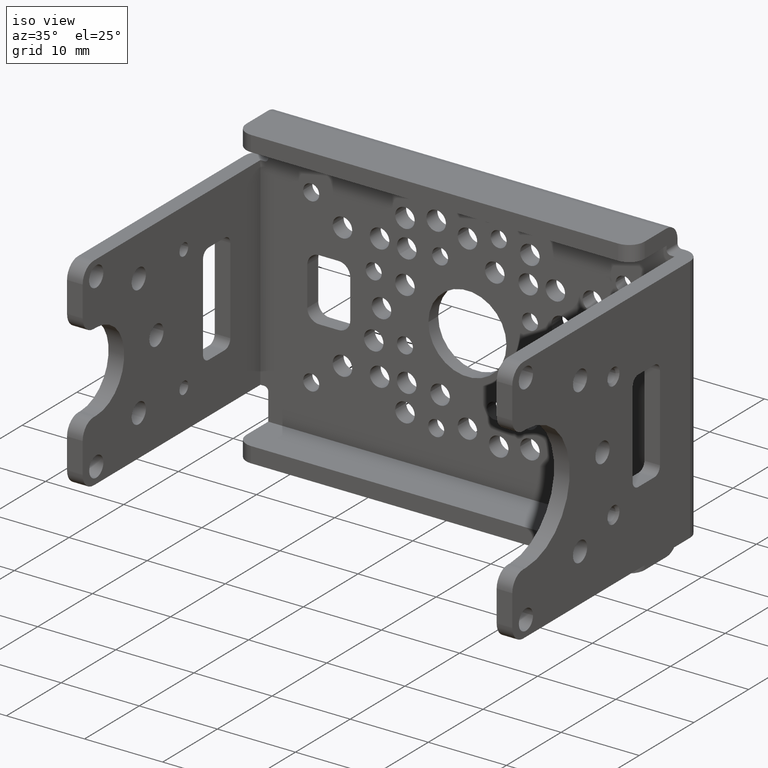
[diagram: clean part render]
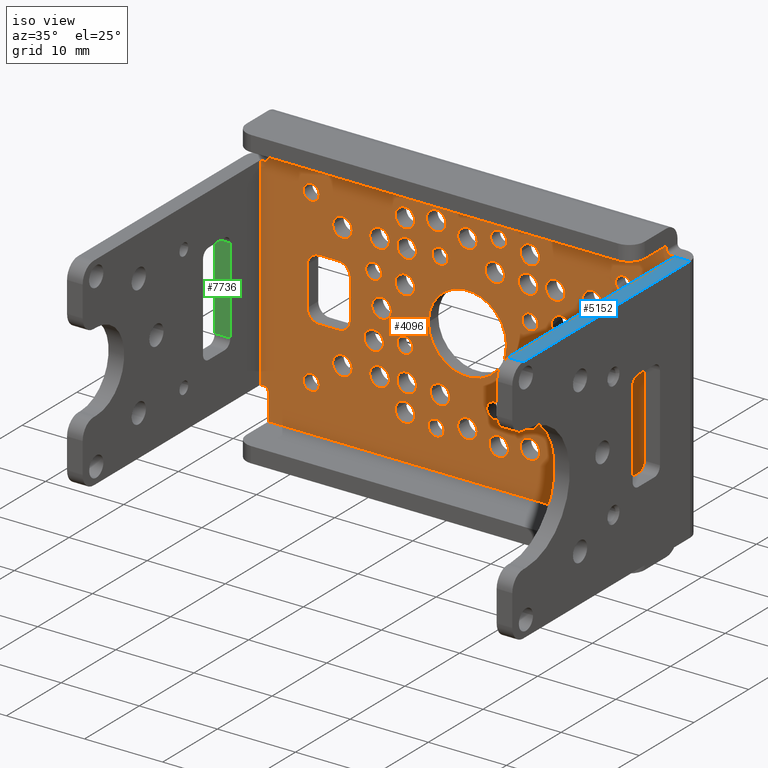
[diagram: same view with three faces highlighted in distinct colors, each labeled with its STEP entity id]
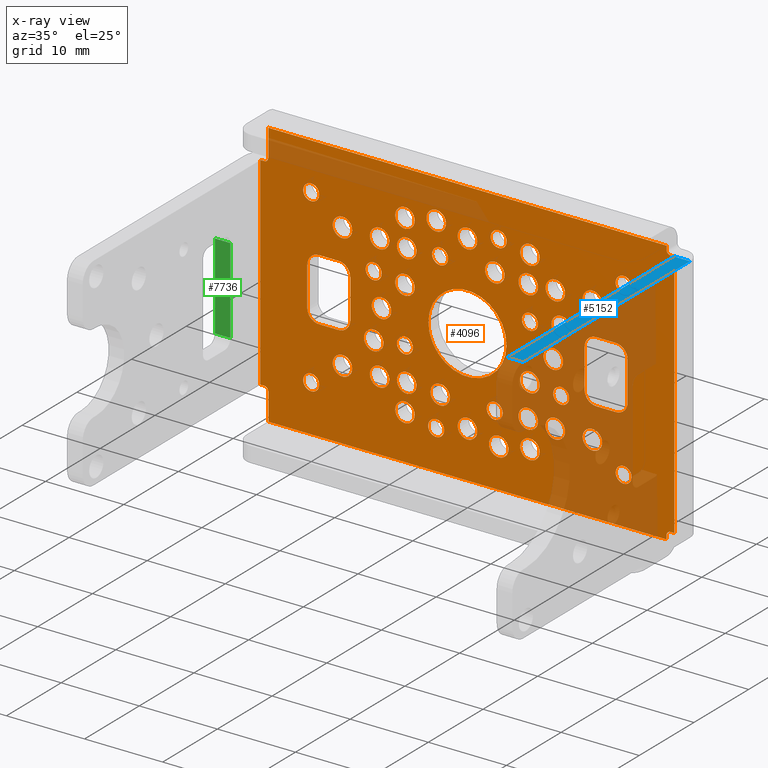
[diagram: x-ray of the same camera — body ghosted, the three highlighted faces saturated]
A machine part, iso view with three faces highlighted in distinct colors.
The next image is the same camera in x-ray (body ghosted, the three faces saturated) — at least one of them is partly hidden behind the body in this view.
Their STEP definitions:

[orange] entity #4096 — the highlighted planar face has unit normal (0, -1, 0).
#1=DIRECTION('',(1.E0,0.E0,0.E0));
#2=VECTOR('',#1,5.E-1);
#3=CARTESIAN_POINT('',(-2.65E1,0.E0,1.3E1));
#4=LINE('',#3,#2);
#5=DIRECTION('',(0.E0,0.E0,-1.E0));
#6=VECTOR('',#5,3.5E0);
#7=CARTESIAN_POINT('',(-2.55E1,0.E0,1.7E1));
#8=LINE('',#7,#6);
#9=DIRECTION('',(-1.E0,0.E0,0.E0));
#10=VECTOR('',#9,5.1E1);
#11=CARTESIAN_POINT('',(2.55E1,0.E0,1.7E1));
#12=LINE('',#11,#10);
#13=DIRECTION('',(0.E0,0.E0,-1.E0));
#14=VECTOR('',#13,5.E-1);
#15=CARTESIAN_POINT('',(2.55E1,0.E0,1.7E1));
#16=LINE('',#15,#14);
#17=DIRECTION('',(-1.E0,0.E0,0.E0));
#18=VECTOR('',#17,5.E-1);
#19=CARTESIAN_POINT('',(2.65E1,0.E0,1.6E1));
#20=LINE('',#19,#18);
#21=DIRECTION('',(-1.E0,0.E0,0.E0));
#22=VECTOR('',#21,5.E-1);
#23=CARTESIAN_POINT('',(2.65E1,0.E0,-1.6E1));
#24=LINE('',#23,#22);
#25=DIRECTION('',(0.E0,0.E0,1.E0));
#26=VECTOR('',#25,5.E-1);
#27=CARTESIAN_POINT('',(2.55E1,0.E0,-1.7E1));
#28=LINE('',#27,#26);
#29=DIRECTION('',(1.E0,0.E0,0.E0));
#30=VECTOR('',#29,5.1E1);
#31=CARTESIAN_POINT('',(-2.55E1,0.E0,-1.7E1));
#32=LINE('',#31,#30);
#33=DIRECTION('',(0.E0,0.E0,1.E0));
#34=VECTOR('',#33,3.5E0);
#35=CARTESIAN_POINT('',(-2.55E1,0.E0,-1.7E1));
#36=LINE('',#35,#34);
#37=DIRECTION('',(1.E0,0.E0,0.E0));
#38=VECTOR('',#37,5.E-1);
#39=CARTESIAN_POINT('',(-2.65E1,0.E0,-1.3E1));
#40=LINE('',#39,#38);
#41=CARTESIAN_POINT('',(0.E0,0.E0,0.E0));
#42=DIRECTION('',(0.E0,1.E0,0.E0));
#43=DIRECTION('',(-1.E0,0.E0,0.E0));
#44=AXIS2_PLACEMENT_3D('',#41,#42,#43);
#46=CARTESIAN_POINT('',(0.E0,0.E0,0.E0));
#47=DIRECTION('',(0.E0,1.E0,0.E0));
#48=DIRECTION('',(1.E0,0.E0,0.E0));
#49=AXIS2_PLACEMENT_3D('',#46,#47,#48);
#51=DIRECTION('',(-1.E0,0.E0,0.E0));
#52=VECTOR('',#51,2.5E0);
#53=CARTESIAN_POINT('',(-1.65E1,0.E0,-4.E0));
#54=LINE('',#53,#52);
#55=DIRECTION('',(0.E0,0.E0,-1.E0));
#56=VECTOR('',#55,5.E0);
#57=CARTESIAN_POINT('',(-1.5E1,0.E0,2.5E0));
#58=LINE('',#57,#56);
#59=DIRECTION('',(1.E0,0.E0,0.E0));
#60=VECTOR('',#59,2.5E0);
#61=CARTESIAN_POINT('',(-1.9E1,0.E0,4.E0));
#62=LINE('',#61,#60);
#63=DIRECTION('',(0.E0,0.E0,1.E0));
#64=VECTOR('',#63,5.E0);
#65=CARTESIAN_POINT('',(-2.05E1,0.E0,-2.5E0));
#66=LINE('',#65,#64);
#67=DIRECTION('',(1.E0,0.E0,0.E0));
#68=VECTOR('',#67,2.5E0);
#69=CARTESIAN_POINT('',(1.65E1,0.E0,-4.E0));
#70=LINE('',#69,#68);
#71=DIRECTION('',(0.E0,0.E0,1.E0));
#72=VECTOR('',#71,5.E0);
#73=CARTESIAN_POINT('',(2.05E1,0.E0,-2.5E0));
#74=LINE('',#73,#72);
#75=DIRECTION('',(-1.E0,0.E0,0.E0));
#76=VECTOR('',#75,2.5E0);
#77=CARTESIAN_POINT('',(1.9E1,0.E0,4.E0));
#78=LINE('',#77,#76);
#79=DIRECTION('',(0.E0,0.E0,-1.E0));
#80=VECTOR('',#79,5.E0);
#81=CARTESIAN_POINT('',(1.5E1,0.E0,2.5E0));
#82=LINE('',#81,#80);
#83=CARTESIAN_POINT('',(0.E0,0.E0,-1.1E1));
#84=DIRECTION('',(0.E0,-1.E0,0.E0));
#85=DIRECTION('',(1.E0,0.E0,0.E0));
#86=AXIS2_PLACEMENT_3D('',#83,#84,#85);
#88=CARTESIAN_POINT('',(0.E0,0.E0,-1.1E1));
#89=DIRECTION('',(0.E0,-1.E0,0.E0));
#90=DIRECTION('',(-1.E0,0.E0,0.E0));
#91=AXIS2_PLACEMENT_3D('',#88,#89,#90);
#93=CARTESIAN_POINT('',(7.778174593052E0,0.E0,-7.778174593052E0));
#94=DIRECTION('',(0.E0,-1.E0,0.E0));
#95=DIRECTION('',(7.071067811865E-1,0.E0,7.071067811865E-1));
#96=AXIS2_PLACEMENT_3D('',#93,#94,#95);
#98=CARTESIAN_POINT('',(7.778174593052E0,0.E0,-7.778174593052E0));
#99=DIRECTION('',(0.E0,-1.E0,0.E0));
#100=DIRECTION('',(-7.071067811865E-1,0.E0,-7.071067811865E-1));
#101=AXIS2_PLACEMENT_3D('',#98,#99,#100);
#103=CARTESIAN_POINT('',(1.1E1,0.E0,0.E0));
#104=DIRECTION('',(0.E0,-1.E0,0.E0));
#105=DIRECTION('',(0.E0,0.E0,1.E0));
#106=AXIS2_PLACEMENT_3D('',#103,#104,#105);
#108=CARTESIAN_POINT('',(1.1E1,0.E0,0.E0));
#109=DIRECTION('',(0.E0,-1.E0,0.E0));
#110=DIRECTION('',(0.E0,0.E0,-1.E0));
#111=AXIS2_PLACEMENT_3D('',#108,#109,#110);
#113=CARTESIAN_POINT('',(7.778174593052E0,0.E0,7.778174593052E0));
#114=DIRECTION('',(0.E0,-1.E0,0.E0));
#115=DIRECTION('',(-7.071067811865E-1,0.E0,7.071067811865E-1));
#116=AXIS2_PLACEMENT_3D('',#113,#114,#115);
#118=CARTESIAN_POINT('',(7.778174593052E0,0.E0,7.778174593052E0));
#119=DIRECTION('',(0.E0,-1.E0,0.E0));
#120=DIRECTION('',(7.071067811865E-1,0.E0,-7.071067811865E-1));
#121=AXIS2_PLACEMENT_3D('',#118,#119,#120);
#123=CARTESIAN_POINT('',(0.E0,0.E0,1.1E1));
#124=DIRECTION('',(0.E0,-1.E0,0.E0));
#125=DIRECTION('',(-1.E0,0.E0,0.E0));
#126=AXIS2_PLACEMENT_3D('',#123,#124,#125);
#128=CARTESIAN_POINT('',(0.E0,0.E0,1.1E1));
#129=DIRECTION('',(0.E0,-1.E0,0.E0));
#130=DIRECTION('',(1.E0,0.E0,0.E0));
#131=AXIS2_PLACEMENT_3D('',#128,#129,#130);
#133=CARTESIAN_POINT('',(-7.778174593052E0,0.E0,7.778174593052E0));
#134=DIRECTION('',(0.E0,-1.E0,0.E0));
#135=DIRECTION('',(-7.071067811865E-1,0.E0,-7.071067811865E-1));
#136=AXIS2_PLACEMENT_3D('',#133,#134,#135);
#138=CARTESIAN_POINT('',(-7.778174593052E0,0.E0,7.778174593052E0));
#139=DIRECTION('',(0.E0,-1.E0,0.E0));
#140=DIRECTION('',(7.071067811865E-1,0.E0,7.071067811865E-1));
#141=AXIS2_PLACEMENT_3D('',#138,#139,#140);
#143=CARTESIAN_POINT('',(-1.1E1,0.E0,0.E0));
#144=DIRECTION('',(0.E0,-1.E0,0.E0));
#145=DIRECTION('',(0.E0,0.E0,-1.E0));
#146=AXIS2_PLACEMENT_3D('',#143,#144,#145);
#148=CARTESIAN_POINT('',(-1.1E1,0.E0,0.E0));
#149=DIRECTION('',(0.E0,-1.E0,0.E0));
#150=DIRECTION('',(0.E0,0.E0,1.E0));
#151=AXIS2_PLACEMENT_3D('',#148,#149,#150);
#153=CARTESIAN_POINT('',(-7.778174593052E0,0.E0,-7.778174593052E0));
#154=DIRECTION('',(0.E0,-1.E0,0.E0));
#155=DIRECTION('',(7.071067811865E-1,0.E0,-7.071067811865E-1));
#156=AXIS2_PLACEMENT_3D('',#153,#154,#155);
#158=CARTESIAN_POINT('',(-7.778174593052E0,0.E0,-7.778174593052E0));
#159=DIRECTION('',(0.E0,-1.E0,0.E0));
#160=DIRECTION('',(-7.071067811865E-1,0.E0,7.071067811865E-1));
#161=AXIS2_PLACEMENT_3D('',#158,#159,#160);
#163=CARTESIAN_POINT('',(3.5E0,0.E0,-8.E0));
#164=DIRECTION('',(0.E0,1.E0,0.E0));
#165=DIRECTION('',(1.E0,0.E0,0.E0));
#166=AXIS2_PLACEMENT_3D('',#163,#164,#165);
#168=CARTESIAN_POINT('',(3.5E0,0.E0,-8.E0));
#169=DIRECTION('',(0.E0,1.E0,0.E0));
#170=DIRECTION('',(-1.E0,0.E0,0.E0));
#171=AXIS2_PLACEMENT_3D('',#168,#169,#170);
#173=CARTESIAN_POINT('',(-3.5E0,0.E0,-8.E0));
#174=DIRECTION('',(0.E0,-1.E0,0.E0));
#175=DIRECTION('',(1.E0,0.E0,0.E0));
#176=AXIS2_PLACEMENT_3D('',#173,#174,#175);
#178=CARTESIAN_POINT('',(-3.5E0,0.E0,-8.E0));
#179=DIRECTION('',(0.E0,-1.E0,0.E0));
#180=DIRECTION('',(-1.E0,0.E0,0.E0));
#181=AXIS2_PLACEMENT_3D('',#178,#179,#180);
#183=CARTESIAN_POINT('',(8.E0,0.E0,3.5E0));
#184=DIRECTION('',(0.E0,1.E0,0.E0));
#185=DIRECTION('',(0.E0,0.E0,1.E0));
#186=AXIS2_PLACEMENT_3D('',#183,#184,#185);
#188=CARTESIAN_POINT('',(8.E0,0.E0,3.5E0));
#189=DIRECTION('',(0.E0,1.E0,0.E0));
#190=DIRECTION('',(0.E0,0.E0,-1.E0));
#191=AXIS2_PLACEMENT_3D('',#188,#189,#190);
#193=CARTESIAN_POINT('',(8.E0,0.E0,-3.5E0));
#194=DIRECTION('',(0.E0,-1.E0,0.E0));
#195=DIRECTION('',(0.E0,0.E0,1.E0));
#196=AXIS2_PLACEMENT_3D('',#193,#194,#195);
#198=CARTESIAN_POINT('',(8.E0,0.E0,-3.5E0));
#199=DIRECTION('',(0.E0,-1.E0,0.E0));
#200=DIRECTION('',(0.E0,0.E0,-1.E0));
#201=AXIS2_PLACEMENT_3D('',#198,#199,#200);
#203=CARTESIAN_POINT('',(-3.5E0,0.E0,8.E0));
#204=DIRECTION('',(0.E0,1.E0,0.E0));
#205=DIRECTION('',(-1.E0,0.E0,0.E0));
#206=AXIS2_PLACEMENT_3D('',#203,#204,#205);
#208=CARTESIAN_POINT('',(-3.5E0,0.E0,8.E0));
#209=DIRECTION('',(0.E0,1.E0,0.E0));
#210=DIRECTION('',(1.E0,0.E0,0.E0));
#211=AXIS2_PLACEMENT_3D('',#208,#209,#210);
#213=CARTESIAN_POINT('',(3.5E0,0.E0,8.E0));
#214=DIRECTION('',(0.E0,-1.E0,0.E0));
#215=DIRECTION('',(-1.E0,0.E0,0.E0));
#216=AXIS2_PLACEMENT_3D('',#213,#214,#215);
#218=CARTESIAN_POINT('',(3.5E0,0.E0,8.E0));
#219=DIRECTION('',(0.E0,-1.E0,0.E0));
#220=DIRECTION('',(1.E0,0.E0,0.E0));
#221=AXIS2_PLACEMENT_3D('',#218,#219,#220);
#223=CARTESIAN_POINT('',(-8.E0,0.E0,-3.5E0));
#224=DIRECTION('',(0.E0,1.E0,0.E0));
#225=DIRECTION('',(0.E0,0.E0,-1.E0));
#226=AXIS2_PLACEMENT_3D('',#223,#224,#225);
#228=CARTESIAN_POINT('',(-8.E0,0.E0,-3.5E0));
#229=DIRECTION('',(0.E0,1.E0,0.E0));
#230=DIRECTION('',(0.E0,0.E0,1.E0));
#231=AXIS2_PLACEMENT_3D('',#228,#229,#230);
#233=CARTESIAN_POINT('',(-8.E0,0.E0,3.5E0));
#234=DIRECTION('',(0.E0,-1.E0,0.E0));
#235=DIRECTION('',(0.E0,0.E0,-1.E0));
#236=AXIS2_PLACEMENT_3D('',#233,#234,#235);
#238=CARTESIAN_POINT('',(-8.E0,0.E0,3.5E0));
#239=DIRECTION('',(0.E0,-1.E0,0.E0));
#240=DIRECTION('',(0.E0,0.E0,1.E0));
#241=AXIS2_PLACEMENT_3D('',#238,#239,#240);
#243=CARTESIAN_POINT('',(1.6E1,0.E0,-8.E0));
#244=DIRECTION('',(0.E0,-1.E0,0.E0));
#245=DIRECTION('',(1.E0,0.E0,0.E0));
#246=AXIS2_PLACEMENT_3D('',#243,#244,#245);
#248=CARTESIAN_POINT('',(1.6E1,0.E0,-8.E0));
#249=DIRECTION('',(0.E0,-1.E0,0.E0));
#250=DIRECTION('',(-1.E0,0.E0,0.E0));
#251=AXIS2_PLACEMENT_3D('',#248,#249,#250);
#253=CARTESIAN_POINT('',(1.6E1,0.E0,8.E0));
#254=DIRECTION('',(0.E0,1.E0,0.E0));
#255=DIRECTION('',(1.E0,0.E0,0.E0));
#256=AXIS2_PLACEMENT_3D('',#253,#254,#255);
#258=CARTESIAN_POINT('',(1.6E1,0.E0,8.E0));
#259=DIRECTION('',(0.E0,1.E0,0.E0));
#260=DIRECTION('',(-1.E0,0.E0,0.E0));
#261=AXIS2_PLACEMENT_3D('',#258,#259,#260);
#263=CARTESIAN_POINT('',(-1.6E1,0.E0,-8.E0));
#264=DIRECTION('',(0.E0,1.E0,0.E0));
#265=DIRECTION('',(-1.E0,0.E0,0.E0));
#266=AXIS2_PLACEMENT_3D('',#263,#264,#265);
#268=CARTESIAN_POINT('',(-1.6E1,0.E0,-8.E0));
#269=DIRECTION('',(0.E0,1.E0,0.E0));
#270=DIRECTION('',(1.E0,0.E0,0.E0));
#271=AXIS2_PLACEMENT_3D('',#268,#269,#270);
#273=CARTESIAN_POINT('',(-1.6E1,0.E0,8.E0));
#274=DIRECTION('',(0.E0,-1.E0,0.E0));
#275=DIRECTION('',(-1.E0,0.E0,0.E0));
#276=AXIS2_PLACEMENT_3D('',#273,#274,#275);
#278=CARTESIAN_POINT('',(-1.6E1,0.E0,8.E0));
#279=DIRECTION('',(0.E0,-1.E0,0.E0));
#280=DIRECTION('',(1.E0,0.E0,0.E0));
#281=AXIS2_PLACEMENT_3D('',#278,#279,#280);
#283=CARTESIAN_POINT('',(8.E0,0.E0,-1.125E1));
#284=DIRECTION('',(0.E0,-1.E0,0.E0));
#285=DIRECTION('',(1.E0,0.E0,0.E0));
#286=AXIS2_PLACEMENT_3D('',#283,#284,#285);
#288=CARTESIAN_POINT('',(8.E0,0.E0,-1.125E1));
#289=DIRECTION('',(0.E0,-1.E0,0.E0));
#290=DIRECTION('',(-1.E0,0.E0,0.E0));
#291=AXIS2_PLACEMENT_3D('',#288,#289,#290);
#293=CARTESIAN_POINT('',(-8.E0,0.E0,-1.125E1));
#294=DIRECTION('',(0.E0,1.E0,0.E0));
#295=DIRECTION('',(-1.E0,0.E0,0.E0));
#296=AXIS2_PLACEMENT_3D('',#293,#294,#295);
#298=CARTESIAN_POINT('',(-8.E0,0.E0,-1.125E1));
#299=DIRECTION('',(0.E0,1.E0,0.E0));
#300=DIRECTION('',(1.E0,0.E0,0.E0));
#301=AXIS2_PLACEMENT_3D('',#298,#299,#300);
#303=CARTESIAN_POINT('',(1.125E1,0.E0,8.E0));
#304=DIRECTION('',(0.E0,-1.E0,0.E0));
#305=DIRECTION('',(0.E0,0.E0,1.E0));
#306=AXIS2_PLACEMENT_3D('',#303,#304,#305);
#308=CARTESIAN_POINT('',(1.125E1,0.E0,8.E0));
#309=DIRECTION('',(0.E0,-1.E0,0.E0));
#310=DIRECTION('',(0.E0,0.E0,-1.E0));
#311=AXIS2_PLACEMENT_3D('',#308,#309,#310);
#313=CARTESIAN_POINT('',(1.125E1,0.E0,-8.E0));
#314=DIRECTION('',(0.E0,1.E0,0.E0));
#315=DIRECTION('',(0.E0,0.E0,-1.E0));
#316=AXIS2_PLACEMENT_3D('',#313,#314,#315);
#318=CARTESIAN_POINT('',(1.125E1,0.E0,-8.E0));
#319=DIRECTION('',(0.E0,1.E0,0.E0));
#320=DIRECTION('',(0.E0,0.E0,1.E0));
#321=AXIS2_PLACEMENT_3D('',#318,#319,#320);
#323=CARTESIAN_POINT('',(-8.E0,0.E0,1.125E1));
#324=DIRECTION('',(0.E0,-1.E0,0.E0));
#325=DIRECTION('',(-1.E0,0.E0,0.E0));
#326=AXIS2_PLACEMENT_3D('',#323,#324,#325);
#328=CARTESIAN_POINT('',(-8.E0,0.E0,1.125E1));
#329=DIRECTION('',(0.E0,-1.E0,0.E0));
#330=DIRECTION('',(1.E0,0.E0,0.E0));
#331=AXIS2_PLACEMENT_3D('',#328,#329,#330);
#333=CARTESIAN_POINT('',(8.E0,0.E0,1.125E1));
#334=DIRECTION('',(0.E0,1.E0,0.E0));
#335=DIRECTION('',(1.E0,0.E0,0.E0));
#336=AXIS2_PLACEMENT_3D('',#333,#334,#335);
#338=CARTESIAN_POINT('',(8.E0,0.E0,1.125E1));
#339=DIRECTION('',(0.E0,1.E0,0.E0));
#340=DIRECTION('',(-1.E0,0.E0,0.E0));
#341=AXIS2_PLACEMENT_3D('',#338,#339,#340);
#343=CARTESIAN_POINT('',(-1.125E1,0.E0,-8.E0));
#344=DIRECTION('',(0.E0,-1.E0,0.E0));
#345=DIRECTION('',(0.E0,0.E0,-1.E0));
#346=AXIS2_PLACEMENT_3D('',#343,#344,#345);
#348=CARTESIAN_POINT('',(-1.125E1,0.E0,-8.E0));
#349=DIRECTION('',(0.E0,-1.E0,0.E0));
#350=DIRECTION('',(0.E0,0.E0,1.E0));
#351=AXIS2_PLACEMENT_3D('',#348,#349,#350);
#353=CARTESIAN_POINT('',(-1.125E1,0.E0,8.E0));
#354=DIRECTION('',(0.E0,1.E0,0.E0));
#355=DIRECTION('',(0.E0,0.E0,1.E0));
#356=AXIS2_PLACEMENT_3D('',#353,#354,#355);
#358=CARTESIAN_POINT('',(-1.125E1,0.E0,8.E0));
#359=DIRECTION('',(0.E0,1.E0,0.E0));
#360=DIRECTION('',(0.E0,0.E0,-1.E0));
#361=AXIS2_PLACEMENT_3D('',#358,#359,#360);
#363=CARTESIAN_POINT('',(1.2E1,0.E0,-4.E0));
#364=DIRECTION('',(0.E0,1.E0,0.E0));
#365=DIRECTION('',(1.E0,0.E0,0.E0));
#366=AXIS2_PLACEMENT_3D('',#363,#364,#365);
#368=CARTESIAN_POINT('',(1.2E1,0.E0,-4.E0));
#369=DIRECTION('',(0.E0,1.E0,0.E0));
#370=DIRECTION('',(-1.E0,0.E0,0.E0));
#371=AXIS2_PLACEMENT_3D('',#368,#369,#370);
#373=CARTESIAN_POINT('',(4.E0,0.E0,1.2E1));
#374=DIRECTION('',(0.E0,1.E0,0.E0));
#375=DIRECTION('',(0.E0,0.E0,1.E0));
#376=AXIS2_PLACEMENT_3D('',#373,#374,#375);
#378=CARTESIAN_POINT('',(4.E0,0.E0,1.2E1));
#379=DIRECTION('',(0.E0,1.E0,0.E0));
#380=DIRECTION('',(0.E0,0.E0,-1.E0));
#381=AXIS2_PLACEMENT_3D('',#378,#379,#380);
#383=CARTESIAN_POINT('',(-1.2E1,0.E0,4.E0));
#384=DIRECTION('',(0.E0,1.E0,0.E0));
#385=DIRECTION('',(-1.E0,0.E0,0.E0));
#386=AXIS2_PLACEMENT_3D('',#383,#384,#385);
#388=CARTESIAN_POINT('',(-1.2E1,0.E0,4.E0));
#389=DIRECTION('',(0.E0,1.E0,0.E0));
#390=DIRECTION('',(1.E0,0.E0,0.E0));
#391=AXIS2_PLACEMENT_3D('',#388,#389,#390);
#393=CARTESIAN_POINT('',(-4.E0,0.E0,-1.2E1));
#394=DIRECTION('',(0.E0,1.E0,0.E0));
#395=DIRECTION('',(0.E0,0.E0,-1.E0));
#396=AXIS2_PLACEMENT_3D('',#393,#394,#395);
#398=CARTESIAN_POINT('',(-4.E0,0.E0,-1.2E1));
#399=DIRECTION('',(0.E0,1.E0,0.E0));
#400=DIRECTION('',(0.E0,0.E0,1.E0));
#401=AXIS2_PLACEMENT_3D('',#398,#399,#400);
#403=CARTESIAN_POINT('',(1.2E1,0.E0,4.E0));
#404=DIRECTION('',(0.E0,-1.E0,0.E0));
#405=DIRECTION('',(1.E0,0.E0,0.E0));
#406=AXIS2_PLACEMENT_3D('',#403,#404,#405);
#408=CARTESIAN_POINT('',(1.2E1,0.E0,4.E0));
#409=DIRECTION('',(0.E0,-1.E0,0.E0));
#410=DIRECTION('',(-1.E0,0.E0,0.E0));
#411=AXIS2_PLACEMENT_3D('',#408,#409,#410);
#413=CARTESIAN_POINT('',(-4.E0,0.E0,1.2E1));
#414=DIRECTION('',(0.E0,-1.E0,0.E0));
#415=DIRECTION('',(0.E0,0.E0,1.E0));
#416=AXIS2_PLACEMENT_3D('',#413,#414,#415);
#418=CARTESIAN_POINT('',(-4.E0,0.E0,1.2E1));
#419=DIRECTION('',(0.E0,-1.E0,0.E0));
#420=DIRECTION('',(0.E0,0.E0,-1.E0));
#421=AXIS2_PLACEMENT_3D('',#418,#419,#420);
#423=CARTESIAN_POINT('',(-1.2E1,0.E0,-4.E0));
#424=DIRECTION('',(0.E0,-1.E0,0.E0));
#425=DIRECTION('',(-1.E0,0.E0,0.E0));
#426=AXIS2_PLACEMENT_3D('',#423,#424,#425);
#428=CARTESIAN_POINT('',(-1.2E1,0.E0,-4.E0));
#429=DIRECTION('',(0.E0,-1.E0,0.E0));
#430=DIRECTION('',(1.E0,0.E0,0.E0));
#431=AXIS2_PLACEMENT_3D('',#428,#429,#430);
#433=CARTESIAN_POINT('',(4.E0,0.E0,-1.2E1));
#434=DIRECTION('',(0.E0,-1.E0,0.E0));
#435=DIRECTION('',(0.E0,0.E0,-1.E0));
#436=AXIS2_PLACEMENT_3D('',#433,#434,#435);
#438=CARTESIAN_POINT('',(4.E0,0.E0,-1.2E1));
#439=DIRECTION('',(0.E0,-1.E0,0.E0));
#440=DIRECTION('',(0.E0,0.E0,1.E0));
#441=AXIS2_PLACEMENT_3D('',#438,#439,#440);
#443=CARTESIAN_POINT('',(-2.E1,0.E0,-1.1E1));
#444=DIRECTION('',(0.E0,1.E0,0.E0));
#445=DIRECTION('',(1.E0,0.E0,0.E0));
#446=AXIS2_PLACEMENT_3D('',#443,#444,#445);
#448=CARTESIAN_POINT('',(-2.E1,0.E0,-1.1E1));
#449=DIRECTION('',(0.E0,1.E0,0.E0));
#450=DIRECTION('',(-1.E0,0.E0,0.E0));
#451=AXIS2_PLACEMENT_3D('',#448,#449,#450);
#453=CARTESIAN_POINT('',(-2.E1,0.E0,1.1E1));
#454=DIRECTION('',(0.E0,-1.E0,0.E0));
#455=DIRECTION('',(1.E0,0.E0,0.E0));
#456=AXIS2_PLACEMENT_3D('',#453,#454,#455);
#458=CARTESIAN_POINT('',(-2.E1,0.E0,1.1E1));
#459=DIRECTION('',(0.E0,-1.E0,0.E0));
#460=DIRECTION('',(-1.E0,0.E0,0.E0));
#461=AXIS2_PLACEMENT_3D('',#458,#459,#460);
#463=CARTESIAN_POINT('',(2.E1,0.E0,-1.1E1));
#464=DIRECTION('',(0.E0,-1.E0,0.E0));
#465=DIRECTION('',(-1.E0,0.E0,0.E0));
#466=AXIS2_PLACEMENT_3D('',#463,#464,#465);
#468=CARTESIAN_POINT('',(2.E1,0.E0,-1.1E1));
#469=DIRECTION('',(0.E0,-1.E0,0.E0));
#470=DIRECTION('',(1.E0,0.E0,0.E0));
#471=AXIS2_PLACEMENT_3D('',#468,#469,#470);
#473=CARTESIAN_POINT('',(2.E1,0.E0,1.1E1));
#474=DIRECTION('',(0.E0,1.E0,0.E0));
#475=DIRECTION('',(-1.E0,0.E0,0.E0));
#476=AXIS2_PLACEMENT_3D('',#473,#474,#475);
#478=CARTESIAN_POINT('',(2.E1,0.E0,1.1E1));
#479=DIRECTION('',(0.E0,1.E0,0.E0));
#480=DIRECTION('',(1.E0,0.E0,0.E0));
#481=AXIS2_PLACEMENT_3D('',#478,#479,#480);
#483=DIRECTION('',(0.E0,0.E0,-1.E0));
#484=VECTOR('',#483,2.6E1);
#485=CARTESIAN_POINT('',(-2.65E1,0.E0,1.3E1));
#486=LINE('',#485,#484);
#1233=CARTESIAN_POINT('',(2.6E1,0.E0,-1.65E1));
#1234=DIRECTION('',(0.E0,1.E0,0.E0));
#1235=DIRECTION('',(-1.E0,0.E0,0.E0));
#1236=AXIS2_PLACEMENT_3D('',#1233,#1234,#1235);
#1464=DIRECTION('',(0.E0,0.E0,1.E0));
#1465=VECTOR('',#1464,3.2E1);
#1466=CARTESIAN_POINT('',(2.65E1,0.E0,-1.6E1));
#1467=LINE('',#1466,#1465);
#1697=CARTESIAN_POINT('',(2.6E1,0.E0,1.65E1));
#1698=DIRECTION('',(0.E0,1.E0,0.E0));
#1699=DIRECTION('',(0.E0,0.E0,-1.E0));
#1700=AXIS2_PLACEMENT_3D('',#1697,#1698,#1699);
#1796=CARTESIAN_POINT('',(-2.6E1,0.E0,1.35E1));
#1797=DIRECTION('',(0.E0,1.E0,0.E0));
#1798=DIRECTION('',(1.E0,0.E0,0.E0));
#1799=AXIS2_PLACEMENT_3D('',#1796,#1797,#1798);
#2055=CARTESIAN_POINT('',(-2.6E1,0.E0,-1.35E1));
#2056=DIRECTION('',(0.E0,1.E0,0.E0));
#2057=DIRECTION('',(0.E0,0.E0,1.E0));
#2058=AXIS2_PLACEMENT_3D('',#2055,#2056,#2057);
#2085=CARTESIAN_POINT('',(-1.65E1,0.E0,-2.5E0));
#2086=DIRECTION('',(0.E0,1.E0,0.E0));
#2087=DIRECTION('',(1.E0,0.E0,0.E0));
#2088=AXIS2_PLACEMENT_3D('',#2085,#2086,#2087);
#2103=CARTESIAN_POINT('',(-1.9E1,0.E0,-2.5E0));
#2104=DIRECTION('',(0.E0,1.E0,0.E0));
#2105=DIRECTION('',(0.E0,0.E0,-1.E0));
#2106=AXIS2_PLACEMENT_3D('',#2103,#2104,#2105);
#2121=CARTESIAN_POINT('',(-1.9E1,0.E0,2.5E0));
#2122=DIRECTION('',(0.E0,1.E0,0.E0));
#2123=DIRECTION('',(-1.E0,0.E0,0.E0));
#2124=AXIS2_PLACEMENT_3D('',#2121,#2122,#2123);
#2139=CARTESIAN_POINT('',(-1.65E1,0.E0,2.5E0));
#2140=DIRECTION('',(0.E0,1.E0,0.E0));
#2141=DIRECTION('',(0.E0,0.E0,1.E0));
#2142=AXIS2_PLACEMENT_3D('',#2139,#2140,#2141);
#2157=CARTESIAN_POINT('',(1.9E1,0.E0,-2.5E0));
#2158=DIRECTION('',(0.E0,1.E0,0.E0));
#2159=DIRECTION('',(1.E0,0.E0,0.E0));
#2160=AXIS2_PLACEMENT_3D('',#2157,#2158,#2159);
#2175=CARTESIAN_POINT('',(1.65E1,0.E0,-2.5E0));
#2176=DIRECTION('',(0.E0,1.E0,0.E0));
#2177=DIRECTION('',(0.E0,0.E0,-1.E0));
#2178=AXIS2_PLACEMENT_3D('',#2175,#2176,#2177);
#2193=CARTESIAN_POINT('',(1.65E1,0.E0,2.5E0));
#2194=DIRECTION('',(0.E0,1.E0,0.E0));
#2195=DIRECTION('',(-1.E0,0.E0,0.E0));
#2196=AXIS2_PLACEMENT_3D('',#2193,#2194,#2195);
#2211=CARTESIAN_POINT('',(1.9E1,0.E0,2.5E0));
#2212=DIRECTION('',(0.E0,1.E0,0.E0));
#2213=DIRECTION('',(0.E0,0.E0,1.E0));
#2214=AXIS2_PLACEMENT_3D('',#2211,#2212,#2213);
#2951=CARTESIAN_POINT('',(-2.65E1,0.E0,1.3E1));
#2952=VERTEX_POINT('',#2951);
#2953=CARTESIAN_POINT('',(-2.65E1,0.E0,-1.3E1));
#2954=VERTEX_POINT('',#2953);
#2959=CARTESIAN_POINT('',(2.65E1,0.E0,-1.6E1));
#2960=VERTEX_POINT('',#2959);
#2961=CARTESIAN_POINT('',(2.65E1,0.E0,1.6E1));
#2962=VERTEX_POINT('',#2961);
#2999=CARTESIAN_POINT('',(2.55E1,0.E0,-1.7E1));
#3000=VERTEX_POINT('',#2999);
#3001=CARTESIAN_POINT('',(-2.55E1,0.E0,-1.7E1));
#3002=VERTEX_POINT('',#3001);
#3007=CARTESIAN_POINT('',(-2.55E1,0.E0,1.7E1));
#3008=VERTEX_POINT('',#3007);
#3009=CARTESIAN_POINT('',(2.55E1,0.E0,1.7E1));
#3010=VERTEX_POINT('',#3009);
#3167=CARTESIAN_POINT('',(-2.6E1,0.E0,1.3E1));
#3169=VERTEX_POINT('',#3167);
#3171=CARTESIAN_POINT('',(-2.6E1,0.E0,-1.3E1));
#3173=VERTEX_POINT('',#3171);
#3175=CARTESIAN_POINT('',(-2.55E1,0.E0,1.35E1));
#3176=VERTEX_POINT('',#3175);
#3179=CARTESIAN_POINT('',(-2.55E1,0.E0,-1.35E1));
#3180=VERTEX_POINT('',#3179);
#3183=CARTESIAN_POINT('',(2.6E1,0.E0,1.6E1));
#3185=VERTEX_POINT('',#3183);
#3187=CARTESIAN_POINT('',(2.55E1,0.E0,1.65E1));
#3189=VERTEX_POINT('',#3187);
#3191=CARTESIAN_POINT('',(2.55E1,0.E0,-1.65E1));
#3193=VERTEX_POINT('',#3191);
#3195=CARTESIAN_POINT('',(2.6E1,0.E0,-1.6E1));
#3197=VERTEX_POINT('',#3195);
#3199=CARTESIAN_POINT('',(-5.E0,0.E0,0.E0));
#3200=CARTESIAN_POINT('',(5.E0,0.E0,0.E0));
#3201=VERTEX_POINT('',#3199);
#3202=VERTEX_POINT('',#3200);
#3231=CARTESIAN_POINT('',(-1.9E1,0.E0,-4.E0));
#3233=VERTEX_POINT('',#3231);
#3235=CARTESIAN_POINT('',(-2.05E1,0.E0,-2.5E0));
#3237=VERTEX_POINT('',#3235);
#3239=CARTESIAN_POINT('',(-1.5E1,0.E0,-2.5E0));
#3241=VERTEX_POINT('',#3239);
#3243=CARTESIAN_POINT('',(-1.65E1,0.E0,-4.E0));
#3245=VERTEX_POINT('',#3243);
#3247=CARTESIAN_POINT('',(-1.65E1,0.E0,4.E0));
#3249=VERTEX_POINT('',#3247);
#3251=CARTESIAN_POINT('',(-1.5E1,0.E0,2.5E0));
#3253=VERTEX_POINT('',#3251);
#3255=CARTESIAN_POINT('',(-2.05E1,0.E0,2.5E0));
#3257=VERTEX_POINT('',#3255);
#3259=CARTESIAN_POINT('',(-1.9E1,0.E0,4.E0));
#3261=VERTEX_POINT('',#3259);
#3263=CARTESIAN_POINT('',(2.05E1,0.E0,-2.5E0));
#3265=VERTEX_POINT('',#3263);
#3267=CARTESIAN_POINT('',(1.9E1,0.E0,-4.E0));
#3269=VERTEX_POINT('',#3267);
#3271=CARTESIAN_POINT('',(1.65E1,0.E0,-4.E0));
#3273=VERTEX_POINT('',#3271);
#3275=CARTESIAN_POINT('',(1.5E1,0.E0,-2.5E0));
#3277=VERTEX_POINT('',#3275);
#3279=CARTESIAN_POINT('',(1.5E1,0.E0,2.5E0));
#3281=VERTEX_POINT('',#3279);
#3283=CARTESIAN_POINT('',(1.65E1,0.E0,4.E0));
#3285=VERTEX_POINT('',#3283);
#3287=CARTESIAN_POINT('',(1.9E1,0.E0,4.E0));
#3289=VERTEX_POINT('',#3287);
#3291=CARTESIAN_POINT('',(2.05E1,0.E0,2.5E0));
#3293=VERTEX_POINT('',#3291);
#3399=CARTESIAN_POINT('',(1.25E0,0.E0,-1.1E1));
#3400=CARTESIAN_POINT('',(-1.25E0,0.E0,-1.1E1));
#3401=VERTEX_POINT('',#3399);
#3402=VERTEX_POINT('',#3400);
#3407=CARTESIAN_POINT('',(8.662058069535E0,0.E0,-6.894291116569E0));
#3408=CARTESIAN_POINT('',(6.894291116569E0,0.E0,-8.662058069535E0));
#3409=VERTEX_POINT('',#3407);
#3410=VERTEX_POINT('',#3408);
#3415=CARTESIAN_POINT('',(1.1E1,0.E0,1.25E0));
#3416=CARTESIAN_POINT('',(1.1E1,0.E0,-1.25E0));
#3417=VERTEX_POINT('',#3415);
#3418=VERTEX_POINT('',#3416);
#3423=CARTESIAN_POINT('',(6.894291116569E0,0.E0,8.662058069535E0));
#3424=CARTESIAN_POINT('',(8.662058069535E0,0.E0,6.894291116569E0));
#3425=VERTEX_POINT('',#3423);
#3426=VERTEX_POINT('',#3424);
#3431=CARTESIAN_POINT('',(-1.25E0,0.E0,1.1E1));
#3432=CARTESIAN_POINT('',(1.25E0,0.E0,1.1E1));
#3433=VERTEX_POINT('',#3431);
#3434=VERTEX_POINT('',#3432);
#3439=CARTESIAN_POINT('',(-8.662058069535E0,0.E0,6.894291116569E0));
#3440=CARTESIAN_POINT('',(-6.894291116569E0,0.E0,8.662058069535E0));
#3441=VERTEX_POINT('',#3439);
#3442=VERTEX_POINT('',#3440);
#3447=CARTESIAN_POINT('',(-1.1E1,0.E0,-1.25E0));
#3448=CARTESIAN_POINT('',(-1.1E1,0.E0,1.25E0));
#3449=VERTEX_POINT('',#3447);
#3450=VERTEX_POINT('',#3448);
#3455=CARTESIAN_POINT('',(-6.894291116569E0,0.E0,-8.662058069535E0));
#3456=CARTESIAN_POINT('',(-8.662058069535E0,0.E0,-6.894291116569E0));
#3457=VERTEX_POINT('',#3455);
#3458=VERTEX_POINT('',#3456);
#3467=CARTESIAN_POINT('',(4.525E0,0.E0,-8.E0));
#3468=CARTESIAN_POINT('',(2.475E0,0.E0,-8.E0));
#3469=VERTEX_POINT('',#3467);
#3470=VERTEX_POINT('',#3468);
#3475=CARTESIAN_POINT('',(-2.25E0,0.E0,-8.E0));
#3476=CARTESIAN_POINT('',(-4.75E0,0.E0,-8.E0));
#3477=VERTEX_POINT('',#3475);
#3478=VERTEX_POINT('',#3476);
#3487=CARTESIAN_POINT('',(8.E0,0.E0,4.525E0));
#3488=VERTEX_POINT('',#3487);
#3491=CARTESIAN_POINT('',(8.E0,0.E0,2.475E0));
#3492=VERTEX_POINT('',#3491);
#3496=CARTESIAN_POINT('',(8.E0,0.E0,-2.25E0));
#3498=VERTEX_POINT('',#3496);
#3500=CARTESIAN_POINT('',(8.E0,0.E0,-4.75E0));
#3502=VERTEX_POINT('',#3500);
#3507=CARTESIAN_POINT('',(-4.525E0,0.E0,8.E0));
#3508=VERTEX_POINT('',#3507);
#3511=CARTESIAN_POINT('',(-2.475E0,0.E0,8.E0));
#3512=VERTEX_POINT('',#3511);
#3516=CARTESIAN_POINT('',(2.25E0,0.E0,8.E0));
#3518=VERTEX_POINT('',#3516);
#3520=CARTESIAN_POINT('',(4.75E0,0.E0,8.E0));
#3522=VERTEX_POINT('',#3520);
#3527=CARTESIAN_POINT('',(-8.E0,0.E0,-4.525E0));
#3528=VERTEX_POINT('',#3527);
#3531=CARTESIAN_POINT('',(-8.E0,0.E0,-2.475E0));
#3532=VERTEX_POINT('',#3531);
#3536=CARTESIAN_POINT('',(-8.E0,0.E0,2.25E0));
#3538=VERTEX_POINT('',#3536);
#3540=CARTESIAN_POINT('',(-8.E0,0.E0,4.75E0));
#3542=VERTEX_POINT('',#3540);
#3543=CARTESIAN_POINT('',(1.725E1,0.E0,-8.E0));
#3544=CARTESIAN_POINT('',(1.475E1,0.E0,-8.E0));
#3545=VERTEX_POINT('',#3543);
#3546=VERTEX_POINT('',#3544);
#3552=CARTESIAN_POINT('',(1.725E1,0.E0,8.E0));
#3554=VERTEX_POINT('',#3552);
#3556=CARTESIAN_POINT('',(1.475E1,0.E0,8.E0));
#3558=VERTEX_POINT('',#3556);
#3560=CARTESIAN_POINT('',(-1.725E1,0.E0,-8.E0));
#3562=VERTEX_POINT('',#3560);
#3564=CARTESIAN_POINT('',(-1.475E1,0.E0,-8.E0));
#3566=VERTEX_POINT('',#3564);
#3568=CARTESIAN_POINT('',(-1.725E1,0.E0,8.E0));
#3570=VERTEX_POINT('',#3568);
#3572=CARTESIAN_POINT('',(-1.475E1,0.E0,8.E0));
#3574=VERTEX_POINT('',#3572);
#3575=CARTESIAN_POINT('',(9.25E0,0.E0,-1.125E1));
#3576=CARTESIAN_POINT('',(6.75E0,0.E0,-1.125E1));
#3577=VERTEX_POINT('',#3575);
#3578=VERTEX_POINT('',#3576);
#3584=CARTESIAN_POINT('',(-9.25E0,0.E0,-1.125E1));
#3586=VERTEX_POINT('',#3584);
#3588=CARTESIAN_POINT('',(-6.75E0,0.E0,-1.125E1));
#3590=VERTEX_POINT('',#3588);
#3592=CARTESIAN_POINT('',(1.125E1,0.E0,9.25E0));
#3594=VERTEX_POINT('',#3592);
#3596=CARTESIAN_POINT('',(1.125E1,0.E0,6.75E0));
#3598=VERTEX_POINT('',#3596);
#3600=CARTESIAN_POINT('',(1.125E1,0.E0,-9.25E0));
#3602=VERTEX_POINT('',#3600);
#3604=CARTESIAN_POINT('',(1.125E1,0.E0,-6.75E0));
#3606=VERTEX_POINT('',#3604);
#3608=CARTESIAN_POINT('',(-9.25E0,0.E0,1.125E1));
#3610=VERTEX_POINT('',#3608);
#3612=CARTESIAN_POINT('',(-6.75E0,0.E0,1.125E1));
#3614=VERTEX_POINT('',#3612);
#3616=CARTESIAN_POINT('',(9.25E0,0.E0,1.125E1));
#3618=VERTEX_POINT('',#3616);
#3620=CARTESIAN_POINT('',(6.75E0,0.E0,1.125E1));
#3622=VERTEX_POINT('',#3620);
#3624=CARTESIAN_POINT('',(-1.125E1,0.E0,-9.25E0));
#3626=VERTEX_POINT('',#3624);
#3628=CARTESIAN_POINT('',(-1.125E1,0.E0,-6.75E0));
#3630=VERTEX_POINT('',#3628);
#3632=CARTESIAN_POINT('',(-1.125E1,0.E0,9.25E0));
#3634=VERTEX_POINT('',#3632);
#3636=CARTESIAN_POINT('',(-1.125E1,0.E0,6.75E0));
#3638=VERTEX_POINT('',#3636);
#3651=CARTESIAN_POINT('',(1.3025E1,0.E0,-4.E0));
#3652=CARTESIAN_POINT('',(1.0975E1,0.E0,-4.E0));
#3653=VERTEX_POINT('',#3651);
#3654=VERTEX_POINT('',#3652);
#3663=CARTESIAN_POINT('',(4.E0,0.E0,1.3025E1));
#3664=CARTESIAN_POINT('',(4.E0,0.E0,1.0975E1));
#3665=VERTEX_POINT('',#3663);
#3666=VERTEX_POINT('',#3664);
#3675=CARTESIAN_POINT('',(-1.3025E1,0.E0,4.E0));
#3676=CARTESIAN_POINT('',(-1.0975E1,0.E0,4.E0));
#3677=VERTEX_POINT('',#3675);
#3678=VERTEX_POINT('',#3676);
#3687=CARTESIAN_POINT('',(-4.E0,0.E0,-1.3025E1));
#3688=CARTESIAN_POINT('',(-4.E0,0.E0,-1.0975E1));
#3689=VERTEX_POINT('',#3687);
#3690=VERTEX_POINT('',#3688);
#3695=CARTESIAN_POINT('',(1.325E1,0.E0,4.E0));
#3696=CARTESIAN_POINT('',(1.075E1,0.E0,4.E0));
#3697=VERTEX_POINT('',#3695);
#3698=VERTEX_POINT('',#3696);
#3703=CARTESIAN_POINT('',(-4.E0,0.E0,1.325E1));
#3704=CARTESIAN_POINT('',(-4.E0,0.E0,1.075E1));
#3705=VERTEX_POINT('',#3703);
#3706=VERTEX_POINT('',#3704);
#3711=CARTESIAN_POINT('',(-1.325E1,0.E0,-4.E0));
#3712=CARTESIAN_POINT('',(-1.075E1,0.E0,-4.E0));
#3713=VERTEX_POINT('',#3711);
#3714=VERTEX_POINT('',#3712);
#3719=CARTESIAN_POINT('',(4.E0,0.E0,-1.325E1));
#3720=CARTESIAN_POINT('',(4.E0,0.E0,-1.075E1));
#3721=VERTEX_POINT('',#3719);
#3722=VERTEX_POINT('',#3720);
#3731=CARTESIAN_POINT('',(-1.8975E1,0.E0,-1.1E1));
#3732=CARTESIAN_POINT('',(-2.1025E1,0.E0,-1.1E1));
#3733=VERTEX_POINT('',#3731);
#3734=VERTEX_POINT('',#3732);
#3743=CARTESIAN_POINT('',(-1.8975E1,0.E0,1.1E1));
#3744=VERTEX_POINT('',#3743);
#3747=CARTESIAN_POINT('',(-2.1025E1,0.E0,1.1E1));
#3748=VERTEX_POINT('',#3747);
#3755=CARTESIAN_POINT('',(1.8975E1,0.E0,-1.1E1));
#3756=VERTEX_POINT('',#3755);
#3759=CARTESIAN_POINT('',(2.1025E1,0.E0,-1.1E1));
#3760=VERTEX_POINT('',#3759);
#3767=CARTESIAN_POINT('',(1.8975E1,0.E0,1.1E1));
#3768=VERTEX_POINT('',#3767);
#3771=CARTESIAN_POINT('',(2.1025E1,0.E0,1.1E1));
#3772=VERTEX_POINT('',#3771);
#3775=CARTESIAN_POINT('',(-2.65E1,0.E0,-1.7E1));
#3776=DIRECTION('',(0.E0,-1.E0,0.E0));
#3777=DIRECTION('',(1.E0,0.E0,0.E0));
#3778=AXIS2_PLACEMENT_3D('',#3775,#3776,#3777);
#3779=PLANE('',#3778);
#3781=ORIENTED_EDGE('',*,*,#3780,.F.);
#3783=ORIENTED_EDGE('',*,*,#3782,.T.);
#3785=ORIENTED_EDGE('',*,*,#3784,.F.);
#3787=ORIENTED_EDGE('',*,*,#3786,.F.);
#3789=ORIENTED_EDGE('',*,*,#3788,.F.);
#3791=ORIENTED_EDGE('',*,*,#3790,.T.);
#3793=ORIENTED_EDGE('',*,*,#3792,.F.);
#3795=ORIENTED_EDGE('',*,*,#3794,.F.);
#3797=ORIENTED_EDGE('',*,*,#3796,.F.);
#3799=ORIENTED_EDGE('',*,*,#3798,.T.);
#3801=ORIENTED_EDGE('',*,*,#3800,.F.);
#3803=ORIENTED_EDGE('',*,*,#3802,.F.);
#3805=ORIENTED_EDGE('',*,*,#3804,.F.);
#3807=ORIENTED_EDGE('',*,*,#3806,.T.);
#3809=ORIENTED_EDGE('',*,*,#3808,.F.);
#3811=ORIENTED_EDGE('',*,*,#3810,.F.);
#3812=EDGE_LOOP('',(#3781,#3783,#3785,#3787,#3789,#3791,#3793,#3795,#3797,#3799,
#3801,#3803,#3805,#3807,#3809,#3811));
#3813=FACE_OUTER_BOUND('',#3812,.F.);
#3815=ORIENTED_EDGE('',*,*,#3814,.F.);
#3817=ORIENTED_EDGE('',*,*,#3816,.F.);
#3818=EDGE_LOOP('',(#3815,#3817));
#3819=FACE_BOUND('',#3818,.F.);
#3821=ORIENTED_EDGE('',*,*,#3820,.F.);
#3823=ORIENTED_EDGE('',*,*,#3822,.F.);
#3825=ORIENTED_EDGE('',*,*,#3824,.F.);
#3827=ORIENTED_EDGE('',*,*,#3826,.F.);
#3829=ORIENTED_EDGE('',*,*,#3828,.F.);
#3831=ORIENTED_EDGE('',*,*,#3830,.F.);
#3833=ORIENTED_EDGE('',*,*,#3832,.F.);
#3835=ORIENTED_EDGE('',*,*,#3834,.F.);
#3836=EDGE_LOOP('',(#3821,#3823,#3825,#3827,#3829,#3831,#3833,#3835));
#3837=FACE_BOUND('',#3836,.F.);
#3839=ORIENTED_EDGE('',*,*,#3838,.T.);
#3841=ORIENTED_EDGE('',*,*,#3840,.F.);
#3843=ORIENTED_EDGE('',*,*,#3842,.T.);
#3845=ORIENTED_EDGE('',*,*,#3844,.F.);
#3847=ORIENTED_EDGE('',*,*,#3846,.T.);
#3849=ORIENTED_EDGE('',*,*,#3848,.F.);
#3851=ORIENTED_EDGE('',*,*,#3850,.T.);
#3853=ORIENTED_EDGE('',*,*,#3852,.F.);
#3854=EDGE_LOOP('',(#3839,#3841,#3843,#3845,#3847,#3849,#3851,#3853));
#3855=FACE_BOUND('',#3854,.F.);
#3857=ORIENTED_EDGE('',*,*,#3856,.T.);
#3859=ORIENTED_EDGE('',*,*,#3858,.T.);
#3860=EDGE_LOOP('',(#3857,#3859));
#3861=FACE_BOUND('',#3860,.F.);
#3863=ORIENTED_EDGE('',*,*,#3862,.T.);
#3865=ORIENTED_EDGE('',*,*,#3864,.T.);
#3866=EDGE_LOOP('',(#3863,#3865));
#3867=FACE_BOUND('',#3866,.F.);
#3869=ORIENTED_EDGE('',*,*,#3868,.T.);
#3871=ORIENTED_EDGE('',*,*,#3870,.T.);
#3872=EDGE_LOOP('',(#3869,#3871));
#3873=FACE_BOUND('',#3872,.F.);
#3875=ORIENTED_EDGE('',*,*,#3874,.T.);
#3877=ORIENTED_EDGE('',*,*,#3876,.T.);
#3878=EDGE_LOOP('',(#3875,#3877));
#3879=FACE_BOUND('',#3878,.F.);
#3881=ORIENTED_EDGE('',*,*,#3880,.T.);
#3883=ORIENTED_EDGE('',*,*,#3882,.T.);
#3884=EDGE_LOOP('',(#3881,#3883));
#3885=FACE_BOUND('',#3884,.F.);
#3887=ORIENTED_EDGE('',*,*,#3886,.T.);
#3889=ORIENTED_EDGE('',*,*,#3888,.T.);
#3890=EDGE_LOOP('',(#3887,#3889));
#3891=FACE_BOUND('',#3890,.F.);
#3893=ORIENTED_EDGE('',*,*,#3892,.T.);
#3895=ORIENTED_EDGE('',*,*,#3894,.T.);
#3896=EDGE_LOOP('',(#3893,#3895));
#3897=FACE_BOUND('',#3896,.F.);
#3899=ORIENTED_EDGE('',*,*,#3898,.T.);
#3901=ORIENTED_EDGE('',*,*,#3900,.T.);
#3902=EDGE_LOOP('',(#3899,#3901));
#3903=FACE_BOUND('',#3902,.F.);
#3905=ORIENTED_EDGE('',*,*,#3904,.F.);
#3907=ORIENTED_EDGE('',*,*,#3906,.F.);
#3908=EDGE_LOOP('',(#3905,#3907));
#3909=FACE_BOUND('',#3908,.F.);
#3911=ORIENTED_EDGE('',*,*,#3910,.T.);
#3913=ORIENTED_EDGE('',*,*,#3912,.T.);
#3914=EDGE_LOOP('',(#3911,#3913));
#3915=FACE_BOUND('',#3914,.F.);
#3917=ORIENTED_EDGE('',*,*,#3916,.F.);
#3919=ORIENTED_EDGE('',*,*,#3918,.F.);
#3920=EDGE_LOOP('',(#3917,#3919));
#3921=FACE_BOUND('',#3920,.F.);
#3923=ORIENTED_EDGE('',*,*,#3922,.T.);
#3925=ORIENTED_EDGE('',*,*,#3924,.T.);
#3926=EDGE_LOOP('',(#3923,#3925));
#3927=FACE_BOUND('',#3926,.F.);
#3929=ORIENTED_EDGE('',*,*,#3928,.F.);
#3931=ORIENTED_EDGE('',*,*,#3930,.F.);
#3932=EDGE_LOOP('',(#3929,#3931));
#3933=FACE_BOUND('',#3932,.F.);
#3935=ORIENTED_EDGE('',*,*,#3934,.T.);
#3937=ORIENTED_EDGE('',*,*,#3936,.T.);
#3938=EDGE_LOOP('',(#3935,#3937));
#3939=FACE_BOUND('',#3938,.F.);
#3941=ORIENTED_EDGE('',*,*,#3940,.F.);
#3943=ORIENTED_EDGE('',*,*,#3942,.F.);
#3944=EDGE_LOOP('',(#3941,#3943));
#3945=FACE_BOUND('',#3944,.F.);
#3947=ORIENTED_EDGE('',*,*,#3946,.T.);
#3949=ORIENTED_EDGE('',*,*,#3948,.T.);
#3950=EDGE_LOOP('',(#3947,#3949));
#3951=FACE_BOUND('',#3950,.F.);
#3953=ORIENTED_EDGE('',*,*,#3952,.T.);
#3955=ORIENTED_EDGE('',*,*,#3954,.T.);
#3956=EDGE_LOOP('',(#3953,#3955));
#3957=FACE_BOUND('',#3956,.F.);
#3959=ORIENTED_EDGE('',*,*,#3958,.F.);
#3961=ORIENTED_EDGE('',*,*,#3960,.F.);
#3962=EDGE_LOOP('',(#3959,#3961));
#3963=FACE_BOUND('',#3962,.F.);
#3965=ORIENTED_EDGE('',*,*,#3964,.F.);
#3967=ORIENTED_EDGE('',*,*,#3966,.F.);
#3968=EDGE_LOOP('',(#3965,#3967));
#3969=FACE_BOUND('',#3968,.F.);
#3971=ORIENTED_EDGE('',*,*,#3970,.T.);
#3973=ORIENTED_EDGE('',*,*,#3972,.T.);
#3974=EDGE_LOOP('',(#3971,#3973));
#3975=FACE_BOUND('',#3974,.F.);
#3977=ORIENTED_EDGE('',*,*,#3976,.T.);
#3979=ORIENTED_EDGE('',*,*,#3978,.T.);
#3980=EDGE_LOOP('',(#3977,#3979));
#3981=FACE_BOUND('',#3980,.F.);
#3983=ORIENTED_EDGE('',*,*,#3982,.F.);
#3985=ORIENTED_EDGE('',*,*,#3984,.F.);
#3986=EDGE_LOOP('',(#3983,#3985));
#3987=FACE_BOUND('',#3986,.F.);
#3989=ORIENTED_EDGE('',*,*,#3988,.T.);
#3991=ORIENTED_EDGE('',*,*,#3990,.T.);
#3992=EDGE_LOOP('',(#3989,#3991));
#3993=FACE_BOUND('',#3992,.F.);
#3995=ORIENTED_EDGE('',*,*,#3994,.F.);
#3997=ORIENTED_EDGE('',*,*,#3996,.F.);
#3998=EDGE_LOOP('',(#3995,#3997));
#3999=FACE_BOUND('',#3998,.F.);
#4001=ORIENTED_EDGE('',*,*,#4000,.T.);
#4003=ORIENTED_EDGE('',*,*,#4002,.T.);
#4004=EDGE_LOOP('',(#4001,#4003));
#4005=FACE_BOUND('',#4004,.F.);
#4007=ORIENTED_EDGE('',*,*,#4006,.F.);
#4009=ORIENTED_EDGE('',*,*,#4008,.F.);
#4010=EDGE_LOOP('',(#4007,#4009));
#4011=FACE_BOUND('',#4010,.F.);
#4013=ORIENTED_EDGE('',*,*,#4012,.T.);
#4015=ORIENTED_EDGE('',*,*,#4014,.T.);
#4016=EDGE_LOOP('',(#4013,#4015));
#4017=FACE_BOUND('',#4016,.F.);
#4019=ORIENTED_EDGE('',*,*,#4018,.F.);
#4021=ORIENTED_EDGE('',*,*,#4020,.F.);
#4022=EDGE_LOOP('',(#4019,#4021));
#4023=FACE_BOUND('',#4022,.F.);
#4025=ORIENTED_EDGE('',*,*,#4024,.F.);
#4027=ORIENTED_EDGE('',*,*,#4026,.F.);
#4028=EDGE_LOOP('',(#4025,#4027));
#4029=FACE_BOUND('',#4028,.F.);
#4031=ORIENTED_EDGE('',*,*,#4030,.F.);
#4033=ORIENTED_EDGE('',*,*,#4032,.F.);
#4034=EDGE_LOOP('',(#4031,#4033));
#4035=FACE_BOUND('',#4034,.F.);
#4037=ORIENTED_EDGE('',*,*,#4036,.F.);
#4039=ORIENTED_EDGE('',*,*,#4038,.F.);
#4040=EDGE_LOOP('',(#4037,#4039));
#4041=FACE_BOUND('',#4040,.F.);
#4043=ORIENTED_EDGE('',*,*,#4042,.F.);
#4045=ORIENTED_EDGE('',*,*,#4044,.F.);
#4046=EDGE_LOOP('',(#4043,#4045));
#4047=FACE_BOUND('',#4046,.F.);
#4049=ORIENTED_EDGE('',*,*,#4048,.T.);
#4051=ORIENTED_EDGE('',*,*,#4050,.T.);
#4052=EDGE_LOOP('',(#4049,#4051));
#4053=FACE_BOUND('',#4052,.F.);
#4055=ORIENTED_EDGE('',*,*,#4054,.T.);
#4057=ORIENTED_EDGE('',*,*,#4056,.T.);
#4058=EDGE_LOOP('',(#4055,#4057));
#4059=FACE_BOUND('',#4058,.F.);
#4061=ORIENTED_EDGE('',*,*,#4060,.T.);
#4063=ORIENTED_EDGE('',*,*,#4062,.T.);
#4064=EDGE_LOOP('',(#4061,#4063));
#4065=FACE_BOUND('',#4064,.F.);
#4067=ORIENTED_EDGE('',*,*,#4066,.T.);
#4069=ORIENTED_EDGE('',*,*,#4068,.T.);
#4070=EDGE_LOOP('',(#4067,#4069));
#4071=FACE_BOUND('',#4070,.F.);
#4073=ORIENTED_EDGE('',*,*,#4072,.F.);
#4075=ORIENTED_EDGE('',*,*,#4074,.F.);
#4076=EDGE_LOOP('',(#4073,#4075));
#4077=FACE_BOUND('',#4076,.F.);
#4079=ORIENTED_EDGE('',*,*,#4078,.T.);
#4081=ORIENTED_EDGE('',*,*,#4080,.T.);
#4082=EDGE_LOOP('',(#4079,#4081));
#4083=FACE_BOUND('',#4082,.F.);
#4085=ORIENTED_EDGE('',*,*,#4084,.T.);
#4087=ORIENTED_EDGE('',*,*,#4086,.T.);
#4088=EDGE_LOOP('',(#4085,#4087));
#4089=FACE_BOUND('',#4088,.F.);
#4091=ORIENTED_EDGE('',*,*,#4090,.F.);
#4093=ORIENTED_EDGE('',*,*,#4092,.F.);
#4094=EDGE_LOOP('',(#4091,#4093));
#4095=FACE_BOUND('',#4094,.F.);
#4096=ADVANCED_FACE('',(#3813,#3819,#3837,#3855,#3861,#3867,#3873,#3879,#3885,
#3891,#3897,#3903,#3909,#3915,#3921,#3927,#3933,#3939,#3945,#3951,#3957,#3963,
#3969,#3975,#3981,#3987,#3993,#3999,#4005,#4011,#4017,#4023,#4029,#4035,#4041,
#4047,#4053,#4059,#4065,#4071,#4077,#4083,#4089,#4095),#3779,.T.);
#45=CIRCLE('',#44,5.E0);
#50=CIRCLE('',#49,5.E0);
#87=CIRCLE('',#86,1.25E0);
#92=CIRCLE('',#91,1.25E0);
#97=CIRCLE('',#96,1.25E0);
#102=CIRCLE('',#101,1.25E0);
#107=CIRCLE('',#106,1.25E0);
#112=CIRCLE('',#111,1.25E0);
#117=CIRCLE('',#116,1.25E0);
#122=CIRCLE('',#121,1.25E0);
#127=CIRCLE('',#126,1.25E0);
#132=CIRCLE('',#131,1.25E0);
#137=CIRCLE('',#136,1.25E0);
#142=CIRCLE('',#141,1.25E0);
#147=CIRCLE('',#146,1.25E0);
#152=CIRCLE('',#151,1.25E0);
#157=CIRCLE('',#156,1.25E0);
#162=CIRCLE('',#161,1.25E0);
#167=CIRCLE('',#166,1.025E0);
#172=CIRCLE('',#171,1.025E0);
#177=CIRCLE('',#176,1.25E0);
#182=CIRCLE('',#181,1.25E0);
#187=CIRCLE('',#186,1.025E0);
#192=CIRCLE('',#191,1.025E0);
#197=CIRCLE('',#196,1.25E0);
#202=CIRCLE('',#201,1.25E0);
#207=CIRCLE('',#206,1.025E0);
#212=CIRCLE('',#211,1.025E0);
#217=CIRCLE('',#216,1.25E0);
#222=CIRCLE('',#221,1.25E0);
#227=CIRCLE('',#226,1.025E0);
#232=CIRCLE('',#231,1.025E0);
#237=CIRCLE('',#236,1.25E0);
#242=CIRCLE('',#241,1.25E0);
#247=CIRCLE('',#246,1.25E0);
#252=CIRCLE('',#251,1.25E0);
#257=CIRCLE('',#256,1.25E0);
#262=CIRCLE('',#261,1.25E0);
#267=CIRCLE('',#266,1.25E0);
#272=CIRCLE('',#271,1.25E0);
#277=CIRCLE('',#276,1.25E0);
#282=CIRCLE('',#281,1.25E0);
#287=CIRCLE('',#286,1.25E0);
#292=CIRCLE('',#291,1.25E0);
#297=CIRCLE('',#296,1.25E0);
#302=CIRCLE('',#301,1.25E0);
#307=CIRCLE('',#306,1.25E0);
#312=CIRCLE('',#311,1.25E0);
#317=CIRCLE('',#316,1.25E0);
#322=CIRCLE('',#321,1.25E0);
#327=CIRCLE('',#326,1.25E0);
#332=CIRCLE('',#331,1.25E0);
#337=CIRCLE('',#336,1.25E0);
#342=CIRCLE('',#341,1.25E0);
#347=CIRCLE('',#346,1.25E0);
#352=CIRCLE('',#351,1.25E0);
#357=CIRCLE('',#356,1.25E0);
#362=CIRCLE('',#361,1.25E0);
#367=CIRCLE('',#366,1.025E0);
#372=CIRCLE('',#371,1.025E0);
#377=CIRCLE('',#376,1.025E0);
#382=CIRCLE('',#381,1.025E0);
#387=CIRCLE('',#386,1.025E0);
#392=CIRCLE('',#391,1.025E0);
#397=CIRCLE('',#396,1.025E0);
#402=CIRCLE('',#401,1.025E0);
#407=CIRCLE('',#406,1.25E0);
#412=CIRCLE('',#411,1.25E0);
#417=CIRCLE('',#416,1.25E0);
#422=CIRCLE('',#421,1.25E0);
#427=CIRCLE('',#426,1.25E0);
#432=CIRCLE('',#431,1.25E0);
#437=CIRCLE('',#436,1.25E0);
#442=CIRCLE('',#441,1.25E0);
#447=CIRCLE('',#446,1.025E0);
#452=CIRCLE('',#451,1.025E0);
#457=CIRCLE('',#456,1.025E0);
#462=CIRCLE('',#461,1.025E0);
#467=CIRCLE('',#466,1.025E0);
#472=CIRCLE('',#471,1.025E0);
#477=CIRCLE('',#476,1.025E0);
#482=CIRCLE('',#481,1.025E0);
#1237=CIRCLE('',#1236,5.E-1);
#1701=CIRCLE('',#1700,5.E-1);
#1800=CIRCLE('',#1799,5.E-1);
#2059=CIRCLE('',#2058,5.E-1);
#2089=CIRCLE('',#2088,1.5E0);
#2107=CIRCLE('',#2106,1.5E0);
#2125=CIRCLE('',#2124,1.5E0);
#2143=CIRCLE('',#2142,1.5E0);
#2161=CIRCLE('',#2160,1.5E0);
#2179=CIRCLE('',#2178,1.5E0);
#2197=CIRCLE('',#2196,1.5E0);
#2215=CIRCLE('',#2214,1.5E0);
#3780=EDGE_CURVE('',#2952,#2954,#486,.T.);
#3782=EDGE_CURVE('',#2952,#3169,#4,.T.);
#3784=EDGE_CURVE('',#3176,#3169,#1800,.T.);
#3786=EDGE_CURVE('',#3008,#3176,#8,.T.);
#3788=EDGE_CURVE('',#3010,#3008,#12,.T.);
#3790=EDGE_CURVE('',#3010,#3189,#16,.T.);
#3792=EDGE_CURVE('',#3185,#3189,#1701,.T.);
#3794=EDGE_CURVE('',#2962,#3185,#20,.T.);
#3796=EDGE_CURVE('',#2960,#2962,#1467,.T.);
#3798=EDGE_CURVE('',#2960,#3197,#24,.T.);
#3800=EDGE_CURVE('',#3193,#3197,#1237,.T.);
#3802=EDGE_CURVE('',#3000,#3193,#28,.T.);
#3804=EDGE_CURVE('',#3002,#3000,#32,.T.);
#3806=EDGE_CURVE('',#3002,#3180,#36,.T.);
#3808=EDGE_CURVE('',#3173,#3180,#2059,.T.);
#3810=EDGE_CURVE('',#2954,#3173,#40,.T.);
#3814=EDGE_CURVE('',#3201,#3202,#45,.T.);
#3816=EDGE_CURVE('',#3202,#3201,#50,.T.);
#3820=EDGE_CURVE('',#3245,#3233,#54,.T.);
#3822=EDGE_CURVE('',#3241,#3245,#2089,.T.);
#3824=EDGE_CURVE('',#3253,#3241,#58,.T.);
#3826=EDGE_CURVE('',#3249,#3253,#2143,.T.);
#3828=EDGE_CURVE('',#3261,#3249,#62,.T.);
#3830=EDGE_CURVE('',#3257,#3261,#2125,.T.);
#3832=EDGE_CURVE('',#3237,#3257,#66,.T.);
#3834=EDGE_CURVE('',#3233,#3237,#2107,.T.);
#3838=EDGE_CURVE('',#3273,#3269,#70,.T.);
#3840=EDGE_CURVE('',#3265,#3269,#2161,.T.);
#3842=EDGE_CURVE('',#3265,#3293,#74,.T.);
#3844=EDGE_CURVE('',#3289,#3293,#2215,.T.);
#3846=EDGE_CURVE('',#3289,#3285,#78,.T.);
#3848=EDGE_CURVE('',#3281,#3285,#2197,.T.);
#3850=EDGE_CURVE('',#3281,#3277,#82,.T.);
#3852=EDGE_CURVE('',#3273,#3277,#2179,.T.);
#3856=EDGE_CURVE('',#3401,#3402,#87,.T.);
#3858=EDGE_CURVE('',#3402,#3401,#92,.T.);
#3862=EDGE_CURVE('',#3409,#3410,#97,.T.);
#3864=EDGE_CURVE('',#3410,#3409,#102,.T.);
#3868=EDGE_CURVE('',#3417,#3418,#107,.T.);
#3870=EDGE_CURVE('',#3418,#3417,#112,.T.);
#3874=EDGE_CURVE('',#3425,#3426,#117,.T.);
#3876=EDGE_CURVE('',#3426,#3425,#122,.T.);
#3880=EDGE_CURVE('',#3433,#3434,#127,.T.);
#3882=EDGE_CURVE('',#3434,#3433,#132,.T.);
#3886=EDGE_CURVE('',#3441,#3442,#137,.T.);
#3888=EDGE_CURVE('',#3442,#3441,#142,.T.);
#3892=EDGE_CURVE('',#3449,#3450,#147,.T.);
#3894=EDGE_CURVE('',#3450,#3449,#152,.T.);
#3898=EDGE_CURVE('',#3457,#3458,#157,.T.);
#3900=EDGE_CURVE('',#3458,#3457,#162,.T.);
#3904=EDGE_CURVE('',#3469,#3470,#167,.T.);
#3906=EDGE_CURVE('',#3470,#3469,#172,.T.);
#3910=EDGE_CURVE('',#3477,#3478,#177,.T.);
#3912=EDGE_CURVE('',#3478,#3477,#182,.T.);
#3916=EDGE_CURVE('',#3488,#3492,#187,.T.);
#3918=EDGE_CURVE('',#3492,#3488,#192,.T.);
#3922=EDGE_CURVE('',#3498,#3502,#197,.T.);
#3924=EDGE_CURVE('',#3502,#3498,#202,.T.);
#3928=EDGE_CURVE('',#3508,#3512,#207,.T.);
#3930=EDGE_CURVE('',#3512,#3508,#212,.T.);
#3934=EDGE_CURVE('',#3518,#3522,#217,.T.);
#3936=EDGE_CURVE('',#3522,#3518,#222,.T.);
#3940=EDGE_CURVE('',#3528,#3532,#227,.T.);
#3942=EDGE_CURVE('',#3532,#3528,#232,.T.);
#3946=EDGE_CURVE('',#3538,#3542,#237,.T.);
#3948=EDGE_CURVE('',#3542,#3538,#242,.T.);
#3952=EDGE_CURVE('',#3545,#3546,#247,.T.);
#3954=EDGE_CURVE('',#3546,#3545,#252,.T.);
#3958=EDGE_CURVE('',#3554,#3558,#257,.T.);
#3960=EDGE_CURVE('',#3558,#3554,#262,.T.);
#3964=EDGE_CURVE('',#3562,#3566,#267,.T.);
#3966=EDGE_CURVE('',#3566,#3562,#272,.T.);
#3970=EDGE_CURVE('',#3570,#3574,#277,.T.);
#3972=EDGE_CURVE('',#3574,#3570,#282,.T.);
#3976=EDGE_CURVE('',#3577,#3578,#287,.T.);
#3978=EDGE_CURVE('',#3578,#3577,#292,.T.);
#3982=EDGE_CURVE('',#3586,#3590,#297,.T.);
#3984=EDGE_CURVE('',#3590,#3586,#302,.T.);
#3988=EDGE_CURVE('',#3594,#3598,#307,.T.);
#3990=EDGE_CURVE('',#3598,#3594,#312,.T.);
#3994=EDGE_CURVE('',#3602,#3606,#317,.T.);
#3996=EDGE_CURVE('',#3606,#3602,#322,.T.);
#4000=EDGE_CURVE('',#3610,#3614,#327,.T.);
#4002=EDGE_CURVE('',#3614,#3610,#332,.T.);
#4006=EDGE_CURVE('',#3618,#3622,#337,.T.);
#4008=EDGE_CURVE('',#3622,#3618,#342,.T.);
#4012=EDGE_CURVE('',#3626,#3630,#347,.T.);
#4014=EDGE_CURVE('',#3630,#3626,#352,.T.);
#4018=EDGE_CURVE('',#3634,#3638,#357,.T.);
#4020=EDGE_CURVE('',#3638,#3634,#362,.T.);
#4024=EDGE_CURVE('',#3653,#3654,#367,.T.);
#4026=EDGE_CURVE('',#3654,#3653,#372,.T.);
#4030=EDGE_CURVE('',#3665,#3666,#377,.T.);
#4032=EDGE_CURVE('',#3666,#3665,#382,.T.);
#4036=EDGE_CURVE('',#3677,#3678,#387,.T.);
#4038=EDGE_CURVE('',#3678,#3677,#392,.T.);
#4042=EDGE_CURVE('',#3689,#3690,#397,.T.);
#4044=EDGE_CURVE('',#3690,#3689,#402,.T.);
#4048=EDGE_CURVE('',#3697,#3698,#407,.T.);
#4050=EDGE_CURVE('',#3698,#3697,#412,.T.);
#4054=EDGE_CURVE('',#3705,#3706,#417,.T.);
#4056=EDGE_CURVE('',#3706,#3705,#422,.T.);
#4060=EDGE_CURVE('',#3713,#3714,#427,.T.);
#4062=EDGE_CURVE('',#3714,#3713,#432,.T.);
#4066=EDGE_CURVE('',#3721,#3722,#437,.T.);
#4068=EDGE_CURVE('',#3722,#3721,#442,.T.);
#4072=EDGE_CURVE('',#3733,#3734,#447,.T.);
#4074=EDGE_CURVE('',#3734,#3733,#452,.T.);
#4078=EDGE_CURVE('',#3744,#3748,#457,.T.);
#4080=EDGE_CURVE('',#3748,#3744,#462,.T.);
#4084=EDGE_CURVE('',#3756,#3760,#467,.T.);
#4086=EDGE_CURVE('',#3760,#3756,#472,.T.);
#4090=EDGE_CURVE('',#3768,#3772,#477,.T.);
#4092=EDGE_CURVE('',#3772,#3768,#482,.T.);

[blue] entity #5152 — the highlighted planar face has unit normal (0, 0, 1).
#1625=DIRECTION('',(0.E0,-1.E0,0.E0));
#1626=VECTOR('',#1625,3.05E1);
#1627=CARTESIAN_POINT('',(2.85E1,0.E0,1.6E1));
#1628=LINE('',#1627,#1626);
#1629=DIRECTION('',(1.E0,0.E0,0.E0));
#1630=VECTOR('',#1629,2.E0);
#1631=CARTESIAN_POINT('',(2.65E1,-3.05E1,1.6E1));
#1632=LINE('',#1631,#1630);
#1633=DIRECTION('',(0.E0,-1.E0,0.E0));
#1634=VECTOR('',#1633,3.05E1);
#1635=CARTESIAN_POINT('',(2.65E1,0.E0,1.6E1));
#1636=LINE('',#1635,#1634);
#1689=DIRECTION('',(-1.E0,0.E0,0.E0));
#1690=VECTOR('',#1689,2.E0);
#1691=CARTESIAN_POINT('',(2.85E1,0.E0,1.6E1));
#1692=LINE('',#1691,#1690);
#2956=CARTESIAN_POINT('',(2.85E1,0.E0,1.6E1));
#2958=VERTEX_POINT('',#2956);
#2961=CARTESIAN_POINT('',(2.65E1,0.E0,1.6E1));
#2962=VERTEX_POINT('',#2961);
#3083=CARTESIAN_POINT('',(2.85E1,-3.05E1,1.6E1));
#3084=VERTEX_POINT('',#3083);
#3085=CARTESIAN_POINT('',(2.65E1,-3.05E1,1.6E1));
#3086=VERTEX_POINT('',#3085);
#5139=CARTESIAN_POINT('',(2.75E1,-1.625E1,1.6E1));
#5140=DIRECTION('',(0.E0,0.E0,1.E0));
#5141=DIRECTION('',(0.E0,-1.E0,0.E0));
#5142=AXIS2_PLACEMENT_3D('',#5139,#5140,#5141);
#5143=PLANE('',#5142);
#5144=ORIENTED_EDGE('',*,*,#4747,.T.);
#5146=ORIENTED_EDGE('',*,*,#5145,.F.);
#5147=ORIENTED_EDGE('',*,*,#4850,.F.);
#5149=ORIENTED_EDGE('',*,*,#5148,.F.);
#5150=EDGE_LOOP('',(#5144,#5146,#5147,#5149));
#5151=FACE_OUTER_BOUND('',#5150,.F.);
#5152=ADVANCED_FACE('',(#5151),#5143,.T.);
#4747=EDGE_CURVE('',#2958,#3084,#1628,.T.);
#4850=EDGE_CURVE('',#2962,#3086,#1636,.T.);
#5145=EDGE_CURVE('',#3086,#3084,#1632,.T.);
#5148=EDGE_CURVE('',#2958,#2962,#1692,.T.);

[green] entity #7736 — the highlighted planar face has unit normal (0, -1, 0).
#570=DIRECTION('',(0.E0,0.E0,-1.E0));
#571=VECTOR('',#570,1.1E1);
#572=CARTESIAN_POINT('',(-2.65E1,-5.5E0,5.5E0));
#573=LINE('',#572,#571);
#709=DIRECTION('',(0.E0,0.E0,-1.E0));
#710=VECTOR('',#709,1.1E1);
#711=CARTESIAN_POINT('',(-2.85E1,-5.5E0,5.5E0));
#712=LINE('',#711,#710);
#2841=DIRECTION('',(-1.E0,0.E0,0.E0));
#2842=VECTOR('',#2841,2.E0);
#2843=CARTESIAN_POINT('',(-2.65E1,-5.5E0,-5.5E0));
#2844=LINE('',#2843,#2842);
#2845=DIRECTION('',(-1.E0,0.E0,0.E0));
#2846=VECTOR('',#2845,2.E0);
#2847=CARTESIAN_POINT('',(-2.65E1,-5.5E0,5.5E0));
#2848=LINE('',#2847,#2846);
#3087=CARTESIAN_POINT('',(-2.65E1,-5.5E0,-5.5E0));
#3088=CARTESIAN_POINT('',(-2.85E1,-5.5E0,-5.5E0));
#3089=VERTEX_POINT('',#3087);
#3090=VERTEX_POINT('',#3088);
#3099=CARTESIAN_POINT('',(-2.65E1,-5.5E0,5.5E0));
#3100=CARTESIAN_POINT('',(-2.85E1,-5.5E0,5.5E0));
#3101=VERTEX_POINT('',#3099);
#3102=VERTEX_POINT('',#3100);
#7724=CARTESIAN_POINT('',(-2.75E1,-5.5E0,0.E0));
#7725=DIRECTION('',(0.E0,-1.E0,0.E0));
#7726=DIRECTION('',(0.E0,0.E0,-1.E0));
#7727=AXIS2_PLACEMENT_3D('',#7724,#7725,#7726);
#7728=PLANE('',#7727);
#7730=ORIENTED_EDGE('',*,*,#7729,.T.);
#7731=ORIENTED_EDGE('',*,*,#4280,.F.);
#7732=ORIENTED_EDGE('',*,*,#7718,.F.);
#7733=ORIENTED_EDGE('',*,*,#4157,.T.);
#7734=EDGE_LOOP('',(#7730,#7731,#7732,#7733));
#7735=FACE_OUTER_BOUND('',#7734,.F.);
#7736=ADVANCED_FACE('',(#7735),#7728,.T.);
#4157=EDGE_CURVE('',#3101,#3089,#573,.T.);
#4280=EDGE_CURVE('',#3102,#3090,#712,.T.);
#7718=EDGE_CURVE('',#3101,#3102,#2848,.T.);
#7729=EDGE_CURVE('',#3089,#3090,#2844,.T.);